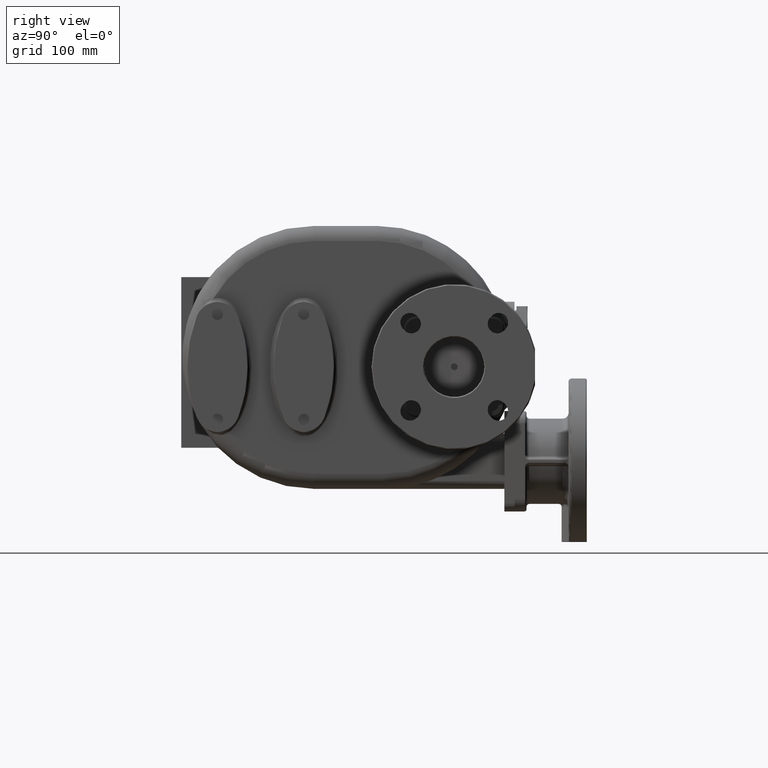
[diagram: clean part render]
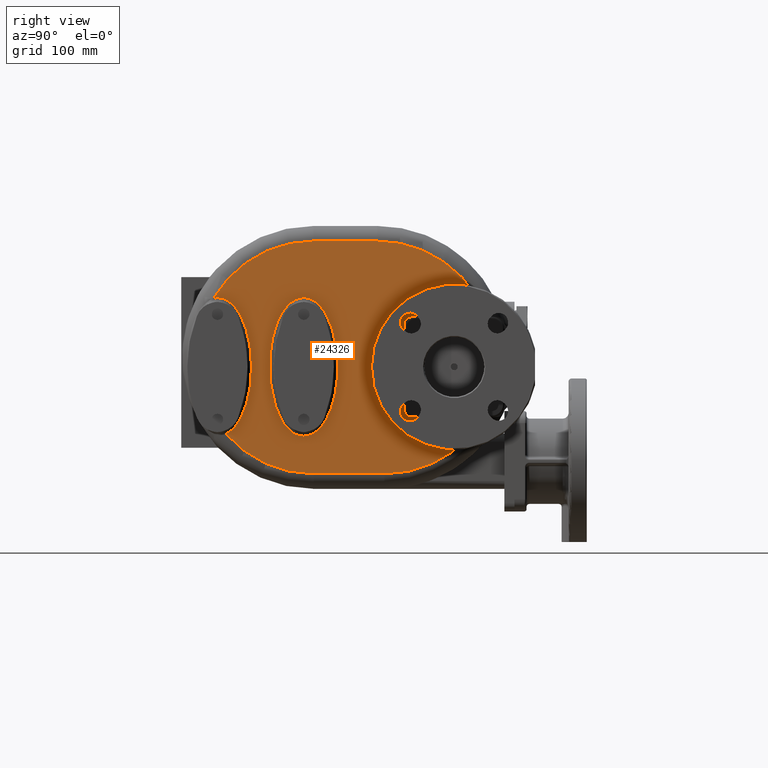
[diagram: same view with one face highlighted and labeled with its STEP entity id]
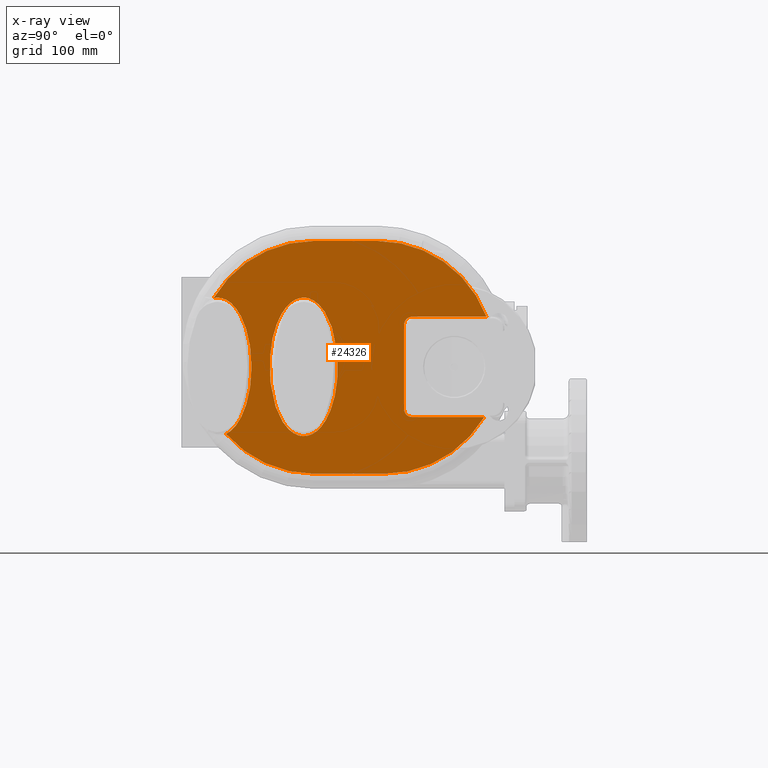
[diagram: x-ray of the same camera — body ghosted, the highlighted face saturated]
A machine part, right view. The second image highlights one B-rep face of the part: STEP entity #24326.
The next image is the same camera in x-ray: the body ghosted, the highlighted face saturated — about 0% of this face is hidden behind the body in this view.
In plain terms, the highlighted planar face has unit normal (-1, 0, 0).
Its self-contained STEP definition (entity closure, byte-faithful):
#6029=CARTESIAN_POINT('',(9.100000769140E1,3.600000000005E1,5.949999999997E1));
#6030=CARTESIAN_POINT('',(9.100000967008E1,3.581966164502E1,5.949999653014E1));
#6031=CARTESIAN_POINT('',(9.099999554707E1,3.545820326080E1,5.949451643429E1));
#6032=CARTESIAN_POINT('',(9.100000108015E1,3.491333252313E1,5.946969862291E1));
#6033=CARTESIAN_POINT('',(9.100000013233E1,3.436679300740E1,5.942800869430E1));
#6034=CARTESIAN_POINT('',(9.099999839053E1,3.381920225739E1,5.936937491779E1));
#6035=CARTESIAN_POINT('',(9.100000630556E1,3.327129884937E1,5.929376160975E1));
#6036=CARTESIAN_POINT('',(9.099997638722E1,3.272373459291E1,5.920111112034E1));
#6037=CARTESIAN_POINT('',(9.100005089278E1,3.235953007896E1,5.912812855650E1));
#6038=CARTESIAN_POINT('',(9.100004992876E1,3.217760166446E1,5.908881446780E1));
#6040=CARTESIAN_POINT('',(9.1E1,1.32E2,0.E0));
#6041=DIRECTION('',(1.E0,0.E0,0.E0));
#6042=DIRECTION('',(0.E0,0.E0,1.E0));
#6043=AXIS2_PLACEMENT_3D('',#6040,#6041,#6042);
#6045=DIRECTION('',(0.E0,-1.E0,0.E0));
#6046=VECTOR('',#6045,6.337137782137E1);
#6047=CARTESIAN_POINT('',(9.1E1,1.953713778214E2,1.16E2));
#6048=LINE('',#6047,#6046);
#6049=CARTESIAN_POINT('',(9.1E1,1.953713778214E2,0.E0));
#6050=DIRECTION('',(1.E0,0.E0,0.E0));
#6051=DIRECTION('',(0.E0,9.370713447294E-1,3.491379310345E-1));
#6052=AXIS2_PLACEMENT_3D('',#6049,#6050,#6051);
#6054=CARTESIAN_POINT('',(9.1E1,2.023006266804E2,0.E0));
#6055=DIRECTION('',(1.E0,0.E0,0.E0));
#6056=DIRECTION('',(0.E0,0.E0,-1.E0));
#6057=AXIS2_PLACEMENT_3D('',#6054,#6055,#6056);
#6059=DIRECTION('',(0.E0,1.E0,0.E0));
#6060=VECTOR('',#6059,7.030062668036E1);
#6061=CARTESIAN_POINT('',(9.1E1,1.32E2,-1.16E2));
#6062=LINE('',#6061,#6060);
#6063=CARTESIAN_POINT('',(9.1E1,1.32E2,0.E0));
#6064=DIRECTION('',(1.E0,0.E0,0.E0));
#6065=DIRECTION('',(0.E0,-7.528766622300E-1,-6.581616302015E-1));
#6066=AXIS2_PLACEMENT_3D('',#6063,#6064,#6065);
#6068=CARTESIAN_POINT('',(9.099992128087E1,4.466630732680E1,-7.634674873565E1));
#6069=CARTESIAN_POINT('',(9.099990623291E1,4.488428892146E1,-7.623591954856E1));
#6070=CARTESIAN_POINT('',(9.100004351746E1,4.532211420032E1,-7.600425811067E1));
#6071=CARTESIAN_POINT('',(9.099998833953E1,4.598342295932E1,-7.562565516244E1));
#6072=CARTESIAN_POINT('',(9.100000312441E1,4.664994968869E1,-7.521456790700E1));
#6073=CARTESIAN_POINT('',(9.099999916282E1,4.732165363997E1,-7.476955411012E1));
#6074=CARTESIAN_POINT('',(9.100000022432E1,4.799842598802E1,-7.428918038869E1));
#6075=CARTESIAN_POINT('',(9.099999993989E1,4.868017087183E1,-7.377183848311E1));
#6076=CARTESIAN_POINT('',(9.100000001611E1,4.936749061023E1,-7.321527536123E1));
#6077=CARTESIAN_POINT('',(9.099999999568E1,5.006074719168E1,-7.261721462709E1));
#6078=CARTESIAN_POINT('',(9.100000000116E1,5.076004457628E1,-7.197547896219E1));
#6079=CARTESIAN_POINT('',(9.099999999969E1,5.146535889293E1,-7.128758283862E1));
#6080=CARTESIAN_POINT('',(9.100000000008E1,5.217679117302E1,-7.055072400298E1));
#6081=CARTESIAN_POINT('',(9.099999999998E1,5.289419816287E1,-6.976231433797E1));
#6082=CARTESIAN_POINT('',(9.100000000001E1,5.361727563751E1,-6.891945931446E1));
#6083=CARTESIAN_POINT('',(9.1E1,5.434585055344E1,-6.801883341086E1));
#6084=CARTESIAN_POINT('',(9.1E1,5.507951227066E1,-6.705743494183E1));
#6085=CARTESIAN_POINT('',(9.1E1,5.581762664493E1,-6.603177854466E1));
#6086=CARTESIAN_POINT('',(9.1E1,5.655956620236E1,-6.493838483149E1));
#6087=CARTESIAN_POINT('',(9.1E1,5.730440817789E1,-6.377384710976E1));
#6088=CARTESIAN_POINT('',(9.1E1,5.805102957950E1,-6.253448013082E1));
#6089=CARTESIAN_POINT('',(9.1E1,5.879820037497E1,-6.121688728581E1));
#6090=CARTESIAN_POINT('',(9.1E1,5.954430083567E1,-5.981749851625E1));
#6091=CARTESIAN_POINT('',(9.1E1,6.028766511601E1,-5.833302629866E1));
#6092=CARTESIAN_POINT('',(9.1E1,6.102618843146E1,-5.676028446961E1));
#6093=CARTESIAN_POINT('',(9.1E1,6.175765728232E1,-5.509639720881E1));
#6094=CARTESIAN_POINT('',(9.1E1,6.247951640779E1,-5.333880452463E1));
#6095=CARTESIAN_POINT('',(9.1E1,6.318896968749E1,-5.148536832232E1));
#6096=CARTESIAN_POINT('',(9.1E1,6.388304523965E1,-4.953442918438E1));
#6097=CARTESIAN_POINT('',(9.1E1,6.455840844292E1,-4.748501263447E1));
#6098=CARTESIAN_POINT('',(9.1E1,6.521163110257E1,-4.533679761953E1));
#6099=CARTESIAN_POINT('',(9.1E1,6.583902689590E1,-4.309035688096E1));
#6100=CARTESIAN_POINT('',(9.1E1,6.643676484727E1,-4.074716158862E1));
#6101=CARTESIAN_POINT('',(9.1E1,6.700098846359E1,-3.830958713732E1));
#6102=CARTESIAN_POINT('',(9.1E1,6.752775775335E1,-3.578110664967E1));
#6103=CARTESIAN_POINT('',(9.1E1,6.801314165868E1,-3.316633740869E1));
#6104=CARTESIAN_POINT('',(9.1E1,6.845341391894E1,-3.047086257878E1));
#6105=CARTESIAN_POINT('',(9.1E1,6.884488343396E1,-2.770162354879E1));
#6106=CARTESIAN_POINT('',(9.1E1,6.918425221210E1,-2.486641120822E1));
#6107=CARTESIAN_POINT('',(9.1E1,6.946848199109E1,-2.197416819243E1));
#6108=CARTESIAN_POINT('',(9.1E1,6.969496152501E1,-1.903470759520E1));
#6109=CARTESIAN_POINT('',(9.1E1,6.986159472386E1,-1.605864099120E1));
#6110=CARTESIAN_POINT('',(9.1E1,6.996675811104E1,-1.305715451046E1));
#6111=CARTESIAN_POINT('',(9.1E1,7.000947420078E1,-1.004187131840E1));
#6112=CARTESIAN_POINT('',(9.1E1,6.998932175360E1,-7.024540483296E0));
#6113=CARTESIAN_POINT('',(9.1E1,6.990649338142E1,-4.017124150174E0));
#6114=CARTESIAN_POINT('',(9.1E1,6.976184048859E1,-1.031209244925E0));
#6115=CARTESIAN_POINT('',(9.1E1,6.955669463666E1,1.921828307473E0));
#6116=CARTESIAN_POINT('',(9.1E1,6.929307982827E1,4.831241793811E0));
#6117=CARTESIAN_POINT('',(9.1E1,6.897335027053E1,7.686975839886E0));
#6118=CARTESIAN_POINT('',(9.1E1,6.860046125114E1,1.047982563726E1));
#6119=CARTESIAN_POINT('',(9.1E1,6.817757909930E1,1.320161167719E1));
#6120=CARTESIAN_POINT('',(9.1E1,6.770825402815E1,1.584521878216E1));
#6121=CARTESIAN_POINT('',(9.1E1,6.719621610012E1,1.840451724933E1));
#6122=CARTESIAN_POINT('',(9.1E1,6.664528484831E1,2.087463231715E1));
#6123=CARTESIAN_POINT('',(9.1E1,6.605944226801E1,2.325159052093E1));
#6124=CARTESIAN_POINT('',(9.1E1,6.544255783718E1,2.553263215422E1));
#6125=CARTESIAN_POINT('',(9.1E1,6.479848045075E1,2.771593615844E1));
#6126=CARTESIAN_POINT('',(9.1E1,6.413098863607E1,2.980055395630E1));
#6127=CARTESIAN_POINT('',(9.1E1,6.344359425549E1,3.178647552272E1));
#6128=CARTESIAN_POINT('',(9.1E1,6.273967258939E1,3.367447942084E1));
#6129=CARTESIAN_POINT('',(9.1E1,6.202233096757E1,3.546599550191E1));
#6130=CARTESIAN_POINT('',(9.1E1,6.129438622664E1,3.716304595302E1));
#6131=CARTESIAN_POINT('',(9.1E1,6.055852464740E1,3.876804257682E1));
#6132=CARTESIAN_POINT('',(9.1E1,5.981701338161E1,4.028376172088E1));
#6133=CARTESIAN_POINT('',(9.1E1,5.907206449995E1,4.171329918279E1));
#6134=CARTESIAN_POINT('',(9.1E1,5.832541240763E1,4.305989420712E1));
#6135=CARTESIAN_POINT('',(9.1E1,5.757878569088E1,4.432704230581E1));
#6136=CARTESIAN_POINT('',(9.1E1,5.683348241151E1,4.551810553065E1));
#6137=CARTESIAN_POINT('',(9.1E1,5.609077440177E1,4.663673794789E1));
#6138=CARTESIAN_POINT('',(9.1E1,5.535157801988E1,4.768634309590E1));
#6139=CARTESIAN_POINT('',(9.1E1,5.461660662872E1,4.867053831125E1));
#6140=CARTESIAN_POINT('',(9.1E1,5.388655588242E1,4.959274032755E1));
#6141=CARTESIAN_POINT('',(9.1E1,5.316175304245E1,5.045615750690E1));
#6142=CARTESIAN_POINT('',(9.1E1,5.244246123235E1,5.126417995939E1));
#6143=CARTESIAN_POINT('',(9.1E1,5.172902638192E1,5.201961796663E1));
#6144=CARTESIAN_POINT('',(9.1E1,5.102145292432E1,5.272533239298E1));
#6145=CARTESIAN_POINT('',(9.1E1,5.031979879214E1,5.338408651439E1));
#6146=CARTESIAN_POINT('',(9.1E1,4.962412490234E1,5.399822802261E1));
#6147=CARTESIAN_POINT('',(9.1E1,4.893420364726E1,5.457021645381E1));
#6148=CARTESIAN_POINT('',(9.1E1,4.825001030420E1,5.510217292734E1));
#6149=CARTESIAN_POINT('',(9.1E1,4.757137932392E1,5.559607878208E1));
#6150=CARTESIAN_POINT('',(9.1E1,4.689802368800E1,5.605386878028E1));
#6151=CARTESIAN_POINT('',(9.1E1,4.622982686230E1,5.647720040911E1));
#6152=CARTESIAN_POINT('',(9.1E1,4.556642984479E1,5.686771584928E1));
#6153=CARTESIAN_POINT('',(9.1E1,4.490761417957E1,5.722682427135E1));
#6154=CARTESIAN_POINT('',(9.1E1,4.425315742979E1,5.755584819394E1));
#6155=CARTESIAN_POINT('',(9.1E1,4.360267646915E1,5.785600579984E1));
#6156=CARTESIAN_POINT('',(9.099999999999E1,4.295583374795E1,5.812843082222E1));
#6157=CARTESIAN_POINT('',(9.100000000003E1,4.231215080959E1,5.837414397422E1));
#6158=CARTESIAN_POINT('',(9.099999999988E1,4.167154153744E1,5.859389792340E1));
#6159=CARTESIAN_POINT('',(9.100000000046E1,4.103396898141E1,5.878845408130E1));
#6160=CARTESIAN_POINT('',(9.099999999827E1,4.039901562096E1,5.895849048363E1));
#6161=CARTESIAN_POINT('',(9.100000000647E1,3.976598470378E1,5.910472315376E1));
#6162=CARTESIAN_POINT('',(9.099999997585E1,3.913401633474E1,5.922778089033E1));
#6163=CARTESIAN_POINT('',(9.100000009012E1,3.850309292868E1,5.932786628178E1));
#6164=CARTESIAN_POINT('',(9.099999966367E1,3.787377088121E1,5.940521712461E1));
#6165=CARTESIAN_POINT('',(9.100000125522E1,3.724646853708E1,5.946013249716E1));
#6166=CARTESIAN_POINT('',(9.099999531546E1,3.662153118643E1,5.949278338985E1));
#6167=CARTESIAN_POINT('',(9.100001009379E1,3.620687115340E1,5.949999584220E1));
#6168=CARTESIAN_POINT('',(9.100000769140E1,3.600000000005E1,5.949999999997E1));
#6170=CARTESIAN_POINT('',(9.100002976873E1,1.219999999825E2,-7.849999999934E1));
#6171=CARTESIAN_POINT('',(9.100006599222E1,1.222089889872E2,-7.849992761562E1));
#6172=CARTESIAN_POINT('',(9.099996937291E1,1.226269893767E2,-7.849219890357E1));
#6173=CARTESIAN_POINT('',(9.100000820650E1,1.232539462229E2,-7.845893867935E1));
#6174=CARTESIAN_POINT('',(9.099999780107E1,1.238811931141E2,-7.840367739163E1));
#6175=CARTESIAN_POINT('',(9.100000058920E1,1.245089220575E2,-7.832642105446E1));
#6176=CARTESIAN_POINT('',(9.099999984212E1,1.251373113750E2,-7.822688290528E1));
#6177=CARTESIAN_POINT('',(9.100000004230E1,1.257665035796E2,-7.810465088703E1));
#6178=CARTESIAN_POINT('',(9.099999998867E1,1.263964641631E2,-7.795914833509E1));
#6179=CARTESIAN_POINT('',(9.100000000304E1,1.270278109559E2,-7.779008056208E1));
#6180=CARTESIAN_POINT('',(9.099999999919E1,1.276617583855E2,-7.759680121310E1));
#6181=CARTESIAN_POINT('',(9.100000000022E1,1.282993002829E2,-7.737846503212E1));
#6182=CARTESIAN_POINT('',(9.099999999994E1,1.289411465157E2,-7.713407249661E1));
#6183=CARTESIAN_POINT('',(9.100000000002E1,1.295866558382E2,-7.686299434873E1));
#6184=CARTESIAN_POINT('',(9.1E1,1.302351134745E2,-7.656455821451E1));
#6185=CARTESIAN_POINT('',(9.1E1,1.308859880422E2,-7.623815209005E1));
#6186=CARTESIAN_POINT('',(9.1E1,1.315408311377E2,-7.588217024686E1));
#6187=CARTESIAN_POINT('',(9.1E1,1.322009591928E2,-7.549474793897E1));
#6188=CARTESIAN_POINT('',(9.1E1,1.328669354104E2,-7.507418688482E1));
#6189=CARTESIAN_POINT('',(9.1E1,1.335381952809E2,-7.461935548003E1));
#6190=CARTESIAN_POINT('',(9.1E1,1.342141469229E2,-7.412911822654E1));
#6191=CARTESIAN_POINT('',(9.1E1,1.348953844826E2,-7.360135916157E1));
#6192=CARTESIAN_POINT('',(9.1E1,1.355824369952E2,-7.303380020100E1));
#6193=CARTESIAN_POINT('',(9.1E1,1.362755582272E2,-7.242422009113E1));
#6194=CARTESIAN_POINT('',(9.1E1,1.369747604409E2,-7.177042576833E1));
#6195=CARTESIAN_POINT('',(9.1E1,1.376801527912E2,-7.106970218984E1));
#6196=CARTESIAN_POINT('',(9.1E1,1.383916778025E2,-7.031938981153E1));
#6197=CARTESIAN_POINT('',(9.1E1,1.391090617436E2,-6.951698498771E1));
#6198=CARTESIAN_POINT('',(9.1E1,1.398321272567E2,-6.865929352639E1));
#6199=CARTESIAN_POINT('',(9.1E1,1.405605591095E2,-6.774321824092E1));
#6200=CARTESIAN_POINT('',(9.1E1,1.412938451072E2,-6.676575263717E1));
#6201=CARTESIAN_POINT('',(9.1E1,1.420313886340E2,-6.572326679996E1));
#6202=CARTESIAN_POINT('',(9.1E1,1.427724797047E2,-6.461249692826E1));
#6203=CARTESIAN_POINT('',(9.1E1,1.435161018842E2,-6.342990575365E1));
#6204=CARTESIAN_POINT('',(9.1E1,1.442611115221E2,-6.217203069811E1));
#6205=CARTESIAN_POINT('',(9.1E1,1.450061424772E2,-6.083547492816E1));
#6206=CARTESIAN_POINT('',(9.1E1,1.457496309239E2,-5.941673749575E1));
#6207=CARTESIAN_POINT('',(9.1E1,1.464897761605E2,-5.791259942696E1));
#6208=CARTESIAN_POINT('',(9.1E1,1.472245099165E2,-5.631998559319E1));
#6209=CARTESIAN_POINT('',(9.1E1,1.479514852984E2,-5.463614500053E1));
#6210=CARTESIAN_POINT('',(9.1E1,1.486681985137E2,-5.285861348603E1));
#6211=CARTESIAN_POINT('',(9.1E1,1.493717453165E2,-5.098545029339E1));
#6212=CARTESIAN_POINT('',(9.1E1,1.500591272500E2,-4.901521776638E1));
#6213=CARTESIAN_POINT('',(9.1E1,1.507270044215E2,-4.694714472128E1));
#6214=CARTESIAN_POINT('',(9.1E1,1.513718772856E2,-4.478121629553E1));
#6215=CARTESIAN_POINT('',(9.1E1,1.519901255730E2,-4.251815853557E1));
#6216=CARTESIAN_POINT('',(9.1E1,1.525779294036E2,-4.015966414029E1));
#6217=CARTESIAN_POINT('',(9.1E1,1.531314320420E2,-3.770841489725E1));
#6218=CARTESIAN_POINT('',(9.1E1,1.536467955655E2,-3.516804805815E1));
#6219=CARTESIAN_POINT('',(9.1E1,1.541201326125E2,-3.254343664375E1));
#6220=CARTESIAN_POINT('',(9.1E1,1.545477806740E2,-2.984044849649E1));
#6221=CARTESIAN_POINT('',(9.1E1,1.549262242805E2,-2.706600151479E1));
#6222=CARTESIAN_POINT('',(9.1E1,1.552521938771E2,-2.422823910650E1));
#6223=CARTESIAN_POINT('',(9.1E1,1.555228774542E2,-2.133595119623E1));
#6224=CARTESIAN_POINT('',(9.1E1,1.557357059216E2,-1.839922929746E1));
#6225=CARTESIAN_POINT('',(9.1E1,1.558888141503E2,-1.542846276781E1));
#6226=CARTESIAN_POINT('',(9.1E1,1.559806302462E2,-1.243495452128E1));
#6227=CARTESIAN_POINT('',(9.1E1,1.560104009219E2,-9.430092195098E0));
#6228=CARTESIAN_POINT('',(9.1E1,1.559777387126E2,-6.425596396738E0));
#6229=CARTESIAN_POINT('',(9.1E1,1.558830504749E2,-3.433241382388E0));
#6230=CARTESIAN_POINT('',(9.1E1,1.557271910816E2,-4.643411524384E-1));
#6231=CARTESIAN_POINT('',(9.1E1,1.555116830744E2,2.469798478656E0));
#6232=CARTESIAN_POINT('',(9.1E1,1.552385173369E2,5.358899181902E0));
#6233=CARTESIAN_POINT('',(9.1E1,1.549102078524E2,8.192904181552E0));
#6234=CARTESIAN_POINT('',(9.1E1,1.545296352843E2,1.096316995740E1));
#6235=CARTESIAN_POINT('',(9.1E1,1.541000834012E2,1.366153668306E1));
#6236=CARTESIAN_POINT('',(9.1E1,1.536250078150E2,1.628135695962E1));
#6237=CARTESIAN_POINT('',(9.1E1,1.531081876936E2,1.881663288060E1));
#6238=CARTESIAN_POINT('',(9.1E1,1.525533816234E2,2.126273401997E1));
#6239=CARTESIAN_POINT('',(9.1E1,1.519645244300E2,2.361592903350E1));
#6240=CARTESIAN_POINT('',(9.1E1,1.513454691941E2,2.587356122194E1));
#6241=CARTESIAN_POINT('',(9.1E1,1.506999922077E2,2.803397406506E1));
#6242=CARTESIAN_POINT('',(9.1E1,1.500318079849E2,3.009637898248E1));
#6243=CARTESIAN_POINT('',(9.1E1,1.493443977244E2,3.206082447235E1));
#6244=CARTESIAN_POINT('',(9.1E1,1.486410108353E2,3.392825548746E1));
#6245=CARTESIAN_POINT('',(9.1E1,1.479247348710E2,3.570014891303E1));
#6246=CARTESIAN_POINT('',(9.1E1,1.471982793180E2,3.737857827911E1));
#6247=CARTESIAN_POINT('',(9.1E1,1.464642904282E2,3.896599760945E1));
#6248=CARTESIAN_POINT('',(9.1E1,1.457249688369E2,4.046516653456E1));
#6249=CARTESIAN_POINT('',(9.1E1,1.449824724881E2,4.187919166238E1));
#6250=CARTESIAN_POINT('',(9.1E1,1.442384884787E2,4.321128901928E1));
#6251=CARTESIAN_POINT('',(9.1E1,1.434947084739E2,4.446491318001E1));
#6252=CARTESIAN_POINT('',(9.1E1,1.427523806769E2,4.564340264149E1));
#6253=CARTESIAN_POINT('',(9.1E1,1.420127609012E2,4.675037499890E1));
#6254=CARTESIAN_POINT('',(9.1E1,1.412766936807E2,4.778919409955E1));
#6255=CARTESIAN_POINT('',(9.1E1,1.405448931910E2,4.876346387182E1));
#6256=CARTESIAN_POINT('',(9.1E1,1.398180189474E2,4.967650613112E1));
#6257=CARTESIAN_POINT('',(9.1E1,1.390963423265E2,5.053155154721E1));
#6258=CARTESIAN_POINT('',(9.1E1,1.383801633060E2,5.133189176119E1));
#6259=CARTESIAN_POINT('',(9.1E1,1.376697937818E2,5.208028016145E1));
#6260=CARTESIAN_POINT('',(9.1E1,1.369652088936E2,5.277957530295E1));
#6261=CARTESIAN_POINT('',(9.1E1,1.362665077669E2,5.343244348983E1));
#6262=CARTESIAN_POINT('',(9.1E1,1.355737118753E2,5.404121509670E1));
#6263=CARTESIAN_POINT('',(9.1E1,1.348866038930E2,5.460830917763E1));
#6264=CARTESIAN_POINT('',(9.1E1,1.342051806344E2,5.513578639092E1));
#6265=CARTESIAN_POINT('',(9.1E1,1.335292438858E2,5.562562163559E1));
#6266=CARTESIAN_POINT('',(9.1E1,1.328585380667E2,5.607969837878E1));
#6267=CARTESIAN_POINT('',(9.1E1,1.321929369038E2,5.649965459688E1));
#6268=CARTESIAN_POINT('',(9.1E1,1.315320791443E2,5.688710797113E1));
#6269=CARTESIAN_POINT('',(9.1E1,1.308757704681E2,5.724343617396E1));
#6270=CARTESIAN_POINT('',(9.1E1,1.302237711500E2,5.756995137400E1));
#6271=CARTESIAN_POINT('',(9.100000000001E1,1.295757062066E2,5.786785013233E1));
#6272=CARTESIAN_POINT('',(9.099999999997E1,1.289312297107E2,5.813825714870E1));
#6273=CARTESIAN_POINT('',(9.100000000011E1,1.282898817448E2,5.838216685490E1));
#6274=CARTESIAN_POINT('',(9.099999999960E1,1.276515933297E2,5.860032073477E1));
#6275=CARTESIAN_POINT('',(9.100000000148E1,1.270163222831E2,5.879347135739E1));
#6276=CARTESIAN_POINT('',(9.099999999448E1,1.263836252053E2,5.896229323823E1));
#6277=CARTESIAN_POINT('',(9.100000002062E1,1.257528123243E2,5.910749510339E1));
#6278=CARTESIAN_POINT('',(9.099999992306E1,1.251230282071E2,5.922969240762E1));
#6279=CARTESIAN_POINT('',(9.100000028716E1,1.244943052675E2,5.932907442089E1));
#6280=CARTESIAN_POINT('',(9.099999892831E1,1.238671859480E2,5.940588288552E1));
#6281=CARTESIAN_POINT('',(9.100000399961E1,1.232420858428E2,5.946041253910E1));
#6282=CARTESIAN_POINT('',(9.099998507325E1,1.226193459158E2,5.949283374531E1));
#6283=CARTESIAN_POINT('',(9.100003216267E1,1.222061437215E2,5.949999585588E1));
#6284=CARTESIAN_POINT('',(9.100002976873E1,1.220000000175E2,5.949999999934E1));
#6286=CARTESIAN_POINT('',(9.100002976873E1,1.220000000175E2,5.949999999934E1));
#6287=CARTESIAN_POINT('',(9.100006599222E1,1.217910110128E2,5.949992761562E1));
#6288=CARTESIAN_POINT('',(9.099996937291E1,1.213730106233E2,5.949219890357E1));
#6289=CARTESIAN_POINT('',(9.100000820650E1,1.207460537771E2,5.945893867935E1));
#6290=CARTESIAN_POINT('',(9.099999780107E1,1.201188068859E2,5.940367739163E1));
#6291=CARTESIAN_POINT('',(9.100000058920E1,1.194910779425E2,5.932642105446E1));
#6292=CARTESIAN_POINT('',(9.099999984212E1,1.188626886250E2,5.922688290528E1));
#6293=CARTESIAN_POINT('',(9.100000004230E1,1.182334964204E2,5.910465088703E1));
#6294=CARTESIAN_POINT('',(9.099999998867E1,1.176035358369E2,5.895914833509E1));
#6295=CARTESIAN_POINT('',(9.100000000304E1,1.169721890441E2,5.879008056208E1));
#6296=CARTESIAN_POINT('',(9.099999999919E1,1.163382416145E2,5.859680121310E1));
#6297=CARTESIAN_POINT('',(9.100000000022E1,1.157006997171E2,5.837846503212E1));
#6298=CARTESIAN_POINT('',(9.099999999994E1,1.150588534843E2,5.813407249661E1));
#6299=CARTESIAN_POINT('',(9.100000000002E1,1.144133441618E2,5.786299434873E1));
#6300=CARTESIAN_POINT('',(9.1E1,1.137648865255E2,5.756455821451E1));
#6301=CARTESIAN_POINT('',(9.1E1,1.131140119578E2,5.723815209005E1));
#6302=CARTESIAN_POINT('',(9.1E1,1.124591688623E2,5.688217024686E1));
#6303=CARTESIAN_POINT('',(9.1E1,1.117990408072E2,5.649474793897E1));
#6304=CARTESIAN_POINT('',(9.1E1,1.111330645896E2,5.607418688482E1));
#6305=CARTESIAN_POINT('',(9.1E1,1.104618047191E2,5.561935548003E1));
#6306=CARTESIAN_POINT('',(9.1E1,1.097858530771E2,5.512911822654E1));
#6307=CARTESIAN_POINT('',(9.1E1,1.091046155174E2,5.460135916157E1));
#6308=CARTESIAN_POINT('',(9.1E1,1.084175630048E2,5.403380020100E1));
#6309=CARTESIAN_POINT('',(9.1E1,1.077244417728E2,5.342422009113E1));
#6310=CARTESIAN_POINT('',(9.1E1,1.070252395591E2,5.277042576833E1));
#6311=CARTESIAN_POINT('',(9.1E1,1.063198472088E2,5.206970218984E1));
#6312=CARTESIAN_POINT('',(9.1E1,1.056083221975E2,5.131938981153E1));
#6313=CARTESIAN_POINT('',(9.1E1,1.048909382564E2,5.051698498771E1));
#6314=CARTESIAN_POINT('',(9.1E1,1.041678727433E2,4.965929352639E1));
#6315=CARTESIAN_POINT('',(9.1E1,1.034394408905E2,4.874321824092E1));
#6316=CARTESIAN_POINT('',(9.1E1,1.027061548928E2,4.776575263717E1));
#6317=CARTESIAN_POINT('',(9.1E1,1.019686113660E2,4.672326679996E1));
#6318=CARTESIAN_POINT('',(9.1E1,1.012275202953E2,4.561249692826E1));
#6319=CARTESIAN_POINT('',(9.1E1,1.004838981158E2,4.442990575365E1));
#6320=CARTESIAN_POINT('',(9.1E1,9.973888847789E1,4.317203069811E1));
#6321=CARTESIAN_POINT('',(9.1E1,9.899385752279E1,4.183547492816E1));
#6322=CARTESIAN_POINT('',(9.1E1,9.825036907609E1,4.041673749575E1));
#6323=CARTESIAN_POINT('',(9.1E1,9.751022383951E1,3.891259942696E1));
#6324=CARTESIAN_POINT('',(9.1E1,9.677549008355E1,3.731998559319E1));
#6325=CARTESIAN_POINT('',(9.1E1,9.604851470158E1,3.563614500053E1));
#6326=CARTESIAN_POINT('',(9.1E1,9.533180148631E1,3.385861348603E1));
#6327=CARTESIAN_POINT('',(9.1E1,9.462825468353E1,3.198545029339E1));
#6328=CARTESIAN_POINT('',(9.1E1,9.394087274997E1,3.001521776638E1));
#6329=CARTESIAN_POINT('',(9.1E1,9.327299557854E1,2.794714472128E1));
#6330=CARTESIAN_POINT('',(9.1E1,9.262812271437E1,2.578121629553E1));
#6331=CARTESIAN_POINT('',(9.1E1,9.200987442698E1,2.351815853556E1));
#6332=CARTESIAN_POINT('',(9.1E1,9.142207059637E1,2.115966414028E1));
#6333=CARTESIAN_POINT('',(9.1E1,9.086856795796E1,1.870841489725E1));
#6334=CARTESIAN_POINT('',(9.1E1,9.035320443452E1,1.616804805815E1));
#6335=CARTESIAN_POINT('',(9.1E1,8.987986738745E1,1.354343664375E1));
#6336=CARTESIAN_POINT('',(9.1E1,8.945221932598E1,1.084044849649E1));
#6337=CARTESIAN_POINT('',(9.1E1,8.907377571945E1,8.066001514784E0));
#6338=CARTESIAN_POINT('',(9.1E1,8.874780612293E1,5.228239106495E0));
#6339=CARTESIAN_POINT('',(9.1E1,8.847712254582E1,2.335951196231E0));
#6340=CARTESIAN_POINT('',(9.1E1,8.826429407843E1,-6.007707025456E-1));
#6341=CARTESIAN_POINT('',(9.1E1,8.811118584973E1,-3.571537232194E0));
#6342=CARTESIAN_POINT('',(9.1E1,8.801936975379E1,-6.565045478723E0));
#6343=CARTESIAN_POINT('',(9.1E1,8.798959907807E1,-9.569907804900E0));
#6344=CARTESIAN_POINT('',(9.1E1,8.802226128735E1,-1.257440360326E1));
#6345=CARTESIAN_POINT('',(9.1E1,8.811694952509E1,-1.556675861761E1));
#6346=CARTESIAN_POINT('',(9.1E1,8.827280891841E1,-1.853565884756E1));
#6347=CARTESIAN_POINT('',(9.1E1,8.848831692557E1,-2.146979847865E1));
#6348=CARTESIAN_POINT('',(9.1E1,8.876148266313E1,-2.435889918190E1));
#6349=CARTESIAN_POINT('',(9.1E1,8.908979214757E1,-2.719290418155E1));
#6350=CARTESIAN_POINT('',(9.1E1,8.947036471567E1,-2.996316995740E1));
#6351=CARTESIAN_POINT('',(9.1E1,8.989991659875E1,-3.266153668306E1));
#6352=CARTESIAN_POINT('',(9.1E1,9.037499218503E1,-3.528135695962E1));
#6353=CARTESIAN_POINT('',(9.1E1,9.089181230641E1,-3.781663288060E1));
#6354=CARTESIAN_POINT('',(9.1E1,9.144661837664E1,-4.026273401997E1));
#6355=CARTESIAN_POINT('',(9.1E1,9.203547557004E1,-4.261592903350E1));
#6356=CARTESIAN_POINT('',(9.1E1,9.265453080592E1,-4.487356122193E1));
#6357=CARTESIAN_POINT('',(9.1E1,9.330000779233E1,-4.703397406506E1));
#6358=CARTESIAN_POINT('',(9.1E1,9.396819201511E1,-4.909637898248E1));
#6359=CARTESIAN_POINT('',(9.1E1,9.465560227560E1,-5.106082447234E1));
#6360=CARTESIAN_POINT('',(9.1E1,9.535898916472E1,-5.292825548745E1));
#6361=CARTESIAN_POINT('',(9.1E1,9.607526512901E1,-5.470014891302E1));
#6362=CARTESIAN_POINT('',(9.1E1,9.680172068200E1,-5.637857827911E1));
#6363=CARTESIAN_POINT('',(9.1E1,9.753570957181E1,-5.796599760945E1));
#6364=CARTESIAN_POINT('',(9.1E1,9.827503116306E1,-5.946516653456E1));
#6365=CARTESIAN_POINT('',(9.1E1,9.901752751193E1,-6.087919166238E1));
#6366=CARTESIAN_POINT('',(9.1E1,9.976151152132E1,-6.221128901928E1));
#6367=CARTESIAN_POINT('',(9.1E1,1.005052915261E2,-6.346491318001E1));
#6368=CARTESIAN_POINT('',(9.1E1,1.012476193231E2,-6.464340264149E1));
#6369=CARTESIAN_POINT('',(9.1E1,1.019872390988E2,-6.575037499890E1));
#6370=CARTESIAN_POINT('',(9.1E1,1.027233063193E2,-6.678919409955E1));
#6371=CARTESIAN_POINT('',(9.1E1,1.034551068090E2,-6.776346387182E1));
#6372=CARTESIAN_POINT('',(9.1E1,1.041819810526E2,-6.867650613112E1));
#6373=CARTESIAN_POINT('',(9.1E1,1.049036576735E2,-6.953155154721E1));
#6374=CARTESIAN_POINT('',(9.1E1,1.056198366940E2,-7.033189176119E1));
#6375=CARTESIAN_POINT('',(9.1E1,1.063302062182E2,-7.108028016145E1));
#6376=CARTESIAN_POINT('',(9.1E1,1.070347911064E2,-7.177957530295E1));
#6377=CARTESIAN_POINT('',(9.1E1,1.077334922331E2,-7.243244348983E1));
#6378=CARTESIAN_POINT('',(9.1E1,1.084262881247E2,-7.304121509670E1));
#6379=CARTESIAN_POINT('',(9.1E1,1.091133961070E2,-7.360830917763E1));
#6380=CARTESIAN_POINT('',(9.1E1,1.097948193656E2,-7.413578639092E1));
#6381=CARTESIAN_POINT('',(9.1E1,1.104707561142E2,-7.462562163559E1));
#6382=CARTESIAN_POINT('',(9.1E1,1.111414619333E2,-7.507969837878E1));
#6383=CARTESIAN_POINT('',(9.1E1,1.118070630962E2,-7.549965459688E1));
#6384=CARTESIAN_POINT('',(9.1E1,1.124679208557E2,-7.588710797113E1));
#6385=CARTESIAN_POINT('',(9.1E1,1.131242295319E2,-7.624343617396E1));
#6386=CARTESIAN_POINT('',(9.1E1,1.137762288500E2,-7.656995137400E1));
#6387=CARTESIAN_POINT('',(9.100000000001E1,1.144242937934E2,-7.686785013233E1));
#6388=CARTESIAN_POINT('',(9.099999999997E1,1.150687702893E2,-7.713825714870E1));
#6389=CARTESIAN_POINT('',(9.100000000011E1,1.157101182552E2,-7.738216685490E1));
#6390=CARTESIAN_POINT('',(9.099999999960E1,1.163484066703E2,-7.760032073477E1));
#6391=CARTESIAN_POINT('',(9.100000000148E1,1.169836777169E2,-7.779347135739E1));
#6392=CARTESIAN_POINT('',(9.099999999448E1,1.176163747947E2,-7.796229323823E1));
#6393=CARTESIAN_POINT('',(9.100000002062E1,1.182471876757E2,-7.810749510339E1));
#6394=CARTESIAN_POINT('',(9.099999992306E1,1.188769717929E2,-7.822969240762E1));
#6395=CARTESIAN_POINT('',(9.100000028716E1,1.195056947325E2,-7.832907442089E1));
#6396=CARTESIAN_POINT('',(9.099999892831E1,1.201328140520E2,-7.840588288552E1));
#6397=CARTESIAN_POINT('',(9.100000399961E1,1.207579141572E2,-7.846041253910E1));
#6398=CARTESIAN_POINT('',(9.099998507325E1,1.213806540842E2,-7.849283374531E1));
#6399=CARTESIAN_POINT('',(9.100003216267E1,1.217938562785E2,-7.849999585588E1));
#6400=CARTESIAN_POINT('',(9.100002976873E1,1.219999999825E2,-7.849999999934E1));
#6642=DIRECTION('',(0.E0,1.E0,0.E0));
#6643=VECTOR('',#6642,7.187848566518E1);
#6644=CARTESIAN_POINT('',(9.1E1,2.3E2,-5.95E1));
#6645=LINE('',#6644,#6643);
#6671=DIRECTION('',(0.E0,0.E0,-1.E0));
#6672=VECTOR('',#6671,8.4E1);
#6673=CARTESIAN_POINT('',(9.1E1,2.22E2,3.25E1));
#6674=LINE('',#6673,#6672);
#6726=DIRECTION('',(0.E0,-1.E0,0.E0));
#6727=VECTOR('',#6726,7.407165380998E1);
#6728=CARTESIAN_POINT('',(9.1E1,3.040716538100E2,4.05E1));
#6729=LINE('',#6728,#6727);
#10529=CARTESIAN_POINT('',(9.1E1,2.3E2,3.25E1));
#10530=DIRECTION('',(-1.E0,0.E0,0.E0));
#10531=DIRECTION('',(0.E0,-1.E0,0.E0));
#10532=AXIS2_PLACEMENT_3D('',#10529,#10530,#10531);
#10552=CARTESIAN_POINT('',(9.1E1,2.3E2,-5.15E1));
#10553=DIRECTION('',(-1.E0,0.E0,0.E0));
#10554=DIRECTION('',(0.E0,0.E0,-1.E0));
#10555=AXIS2_PLACEMENT_3D('',#10552,#10553,#10554);
#16192=CARTESIAN_POINT('',(9.1E1,2.22E2,3.25E1));
#16193=CARTESIAN_POINT('',(9.1E1,2.22E2,-5.15E1));
#16194=VERTEX_POINT('',#16192);
#16195=VERTEX_POINT('',#16193);
#16196=CARTESIAN_POINT('',(9.1E1,2.3E2,-5.95E1));
#16197=VERTEX_POINT('',#16196);
#16198=CARTESIAN_POINT('',(9.1E1,2.3E2,4.05E1));
#16199=VERTEX_POINT('',#16198);
#16204=CARTESIAN_POINT('',(9.1E1,2.023006266804E2,-1.16E2));
#16205=CARTESIAN_POINT('',(9.1E1,3.018784856652E2,-5.95E1));
#16206=VERTEX_POINT('',#16204);
#16207=VERTEX_POINT('',#16205);
#16208=CARTESIAN_POINT('',(9.1E1,1.32E2,-1.16E2));
#16209=VERTEX_POINT('',#16208);
#16214=CARTESIAN_POINT('',(9.1E1,1.953713778214E2,1.16E2));
#16215=CARTESIAN_POINT('',(9.1E1,1.32E2,1.16E2));
#16216=VERTEX_POINT('',#16214);
#16217=VERTEX_POINT('',#16215);
#16220=CARTESIAN_POINT('',(9.1E1,3.040716538100E2,4.05E1));
#16221=VERTEX_POINT('',#16220);
#16252=VERTEX_POINT('',#6170);
#16253=VERTEX_POINT('',#6284);
#16268=VERTEX_POINT('',#6029);
#16269=VERTEX_POINT('',#6038);
#16271=VERTEX_POINT('',#6068);
#24288=CARTESIAN_POINT('',(9.1E1,1.32E2,0.E0));
#24289=DIRECTION('',(-1.E0,0.E0,0.E0));
#24290=DIRECTION('',(0.E0,0.E0,1.E0));
#24291=AXIS2_PLACEMENT_3D('',#24288,#24289,#24290);
#24292=PLANE('',#24291);
#24294=ORIENTED_EDGE('',*,*,#24293,.T.);
#24296=ORIENTED_EDGE('',*,*,#24295,.F.);
#24297=ORIENTED_EDGE('',*,*,#24278,.F.);
#24299=ORIENTED_EDGE('',*,*,#24298,.F.);
#24301=ORIENTED_EDGE('',*,*,#24300,.T.);
#24303=ORIENTED_EDGE('',*,*,#24302,.F.);
#24305=ORIENTED_EDGE('',*,*,#24304,.T.);
#24307=ORIENTED_EDGE('',*,*,#24306,.F.);
#24309=ORIENTED_EDGE('',*,*,#24308,.T.);
#24311=ORIENTED_EDGE('',*,*,#24310,.F.);
#24313=ORIENTED_EDGE('',*,*,#24312,.F.);
#24315=ORIENTED_EDGE('',*,*,#24314,.F.);
#24317=ORIENTED_EDGE('',*,*,#24316,.T.);
#24318=EDGE_LOOP('',(#24294,#24296,#24297,#24299,#24301,#24303,#24305,#24307,
#24309,#24311,#24313,#24315,#24317));
#24319=FACE_OUTER_BOUND('',#24318,.F.);
#24321=ORIENTED_EDGE('',*,*,#24320,.T.);
#24323=ORIENTED_EDGE('',*,*,#24322,.T.);
#24324=EDGE_LOOP('',(#24321,#24323));
#24325=FACE_BOUND('',#24324,.F.);
#24326=ADVANCED_FACE('',(#24319,#24325),#24292,.F.);
#6039=B_SPLINE_CURVE_WITH_KNOTS('',3,(#6029,#6030,#6031,#6032,#6033,#6034,#6035,
#6036,#6037,#6038),.UNSPECIFIED.,.F.,.F.,(4,1,1,1,1,1,1,4),(0.E0,
1.428571428571E-1,2.857142857143E-1,4.285714285714E-1,5.714285714286E-1,
7.142857142857E-1,8.571428571429E-1,1.E0),.UNSPECIFIED.);
#6044=CIRCLE('',#6043,1.16E2);
#6053=CIRCLE('',#6052,1.16E2);
#6058=CIRCLE('',#6057,1.16E2);
#6067=CIRCLE('',#6066,1.16E2);
#6169=B_SPLINE_CURVE_WITH_KNOTS('',3,(#6068,#6069,#6070,#6071,#6072,#6073,#6074,
#6075,#6076,#6077,#6078,#6079,#6080,#6081,#6082,#6083,#6084,#6085,#6086,#6087,
#6088,#6089,#6090,#6091,#6092,#6093,#6094,#6095,#6096,#6097,#6098,#6099,#6100,
#6101,#6102,#6103,#6104,#6105,#6106,#6107,#6108,#6109,#6110,#6111,#6112,#6113,
#6114,#6115,#6116,#6117,#6118,#6119,#6120,#6121,#6122,#6123,#6124,#6125,#6126,
#6127,#6128,#6129,#6130,#6131,#6132,#6133,#6134,#6135,#6136,#6137,#6138,#6139,
#6140,#6141,#6142,#6143,#6144,#6145,#6146,#6147,#6148,#6149,#6150,#6151,#6152,
#6153,#6154,#6155,#6156,#6157,#6158,#6159,#6160,#6161,#6162,#6163,#6164,#6165,
#6166,#6167,#6168),.UNSPECIFIED.,.F.,.F.,(4,1,1,1,1,1,1,1,1,1,1,1,1,1,1,1,1,1,1,
1,1,1,1,1,1,1,1,1,1,1,1,1,1,1,1,1,1,1,1,1,1,1,1,1,1,1,1,1,1,1,1,1,1,1,1,1,1,1,1,
1,1,1,1,1,1,1,1,1,1,1,1,1,1,1,1,1,1,1,1,1,1,1,1,1,1,1,1,1,1,1,1,1,1,1,1,1,1,1,
4),(0.E0,1.020408163265E-2,2.040816326531E-2,3.061224489796E-2,
4.081632653061E-2,5.102040816327E-2,6.122448979592E-2,7.142857142857E-2,
8.163265306122E-2,9.183673469388E-2,1.020408163265E-1,1.122448979592E-1,
1.224489795918E-1,1.326530612245E-1,1.428571428571E-1,1.530612244898E-1,
1.632653061224E-1,1.734693877551E-1,1.836734693878E-1,1.938775510204E-1,
2.040816326531E-1,2.142857142857E-1,2.244897959184E-1,2.346938775510E-1,
2.448979591837E-1,2.551020408163E-1,2.653061224490E-1,2.755102040816E-1,
2.857142857143E-1,2.959183673469E-1,3.061224489796E-1,3.163265306122E-1,
3.265306122449E-1,3.367346938776E-1,3.469387755102E-1,3.571428571429E-1,
3.673469387755E-1,3.775510204082E-1,3.877551020408E-1,3.979591836735E-1,
4.081632653061E-1,4.183673469388E-1,4.285714285714E-1,4.387755102041E-1,
4.489795918367E-1,4.591836734694E-1,4.693877551020E-1,4.795918367347E-1,
4.897959183673E-1,5.E-1,5.102040816327E-1,5.204081632653E-1,5.306122448980E-1,
5.408163265306E-1,5.510204081633E-1,5.612244897959E-1,5.714285714286E-1,
5.816326530612E-1,5.918367346939E-1,6.020408163265E-1,6.122448979592E-1,
6.224489795918E-1,6.326530612245E-1,6.428571428571E-1,6.530612244898E-1,
6.632653061224E-1,6.734693877551E-1,6.836734693878E-1,6.938775510204E-1,
7.040816326531E-1,7.142857142857E-1,7.244897959184E-1,7.346938775510E-1,
7.448979591837E-1,7.551020408163E-1,7.653061224490E-1,7.755102040816E-1,
7.857142857143E-1,7.959183673469E-1,8.061224489796E-1,8.163265306122E-1,
8.265306122449E-1,8.367346938776E-1,8.469387755102E-1,8.571428571429E-1,
8.673469387755E-1,8.775510204082E-1,8.877551020408E-1,8.979591836735E-1,
9.081632653061E-1,9.183673469388E-1,9.285714285714E-1,9.387755102041E-1,
9.489795918367E-1,9.591836734694E-1,9.693877551020E-1,9.795918367347E-1,
9.897959183673E-1,1.E0),.UNSPECIFIED.);
#6285=B_SPLINE_CURVE_WITH_KNOTS('',3,(#6170,#6171,#6172,#6173,#6174,#6175,#6176,
#6177,#6178,#6179,#6180,#6181,#6182,#6183,#6184,#6185,#6186,#6187,#6188,#6189,
#6190,#6191,#6192,#6193,#6194,#6195,#6196,#6197,#6198,#6199,#6200,#6201,#6202,
#6203,#6204,#6205,#6206,#6207,#6208,#6209,#6210,#6211,#6212,#6213,#6214,#6215,
#6216,#6217,#6218,#6219,#6220,#6221,#6222,#6223,#6224,#6225,#6226,#6227,#6228,
#6229,#6230,#6231,#6232,#6233,#6234,#6235,#6236,#6237,#6238,#6239,#6240,#6241,
#6242,#6243,#6244,#6245,#6246,#6247,#6248,#6249,#6250,#6251,#6252,#6253,#6254,
#6255,#6256,#6257,#6258,#6259,#6260,#6261,#6262,#6263,#6264,#6265,#6266,#6267,
#6268,#6269,#6270,#6271,#6272,#6273,#6274,#6275,#6276,#6277,#6278,#6279,#6280,
#6281,#6282,#6283,#6284),.UNSPECIFIED.,.F.,.F.,(4,1,1,1,1,1,1,1,1,1,1,1,1,1,1,1,
1,1,1,1,1,1,1,1,1,1,1,1,1,1,1,1,1,1,1,1,1,1,1,1,1,1,1,1,1,1,1,1,1,1,1,1,1,1,1,1,
1,1,1,1,1,1,1,1,1,1,1,1,1,1,1,1,1,1,1,1,1,1,1,1,1,1,1,1,1,1,1,1,1,1,1,1,1,1,1,1,
1,1,1,1,1,1,1,1,1,1,1,1,1,1,1,1,4),(0.E0,8.928571428571E-3,1.785714285714E-2,
2.678571428571E-2,3.571428571429E-2,4.464285714286E-2,5.357142857143E-2,6.25E-2,
7.142857142857E-2,8.035714285714E-2,8.928571428571E-2,9.821428571429E-2,
1.071428571429E-1,1.160714285714E-1,1.25E-1,1.339285714286E-1,1.428571428571E-1,
1.517857142857E-1,1.607142857143E-1,1.696428571429E-1,1.785714285714E-1,
1.875E-1,1.964285714286E-1,2.053571428571E-1,2.142857142857E-1,
2.232142857143E-1,2.321428571429E-1,2.410714285714E-1,2.5E-1,2.589285714286E-1,
2.678571428571E-1,2.767857142857E-1,2.857142857143E-1,2.946428571429E-1,
3.035714285714E-1,3.125E-1,3.214285714286E-1,3.303571428571E-1,
3.392857142857E-1,3.482142857143E-1,3.571428571429E-1,3.660714285714E-1,3.75E-1,
3.839285714286E-1,3.928571428571E-1,4.017857142857E-1,4.107142857143E-1,
4.196428571429E-1,4.285714285714E-1,4.375E-1,4.464285714286E-1,
4.553571428571E-1,4.642857142857E-1,4.732142857143E-1,4.821428571429E-1,
4.910714285714E-1,5.E-1,5.089285714286E-1,5.178571428571E-1,5.267857142857E-1,
5.357142857143E-1,5.446428571429E-1,5.535714285714E-1,5.625E-1,
5.714285714286E-1,5.803571428571E-1,5.892857142857E-1,5.982142857143E-1,
6.071428571429E-1,6.160714285714E-1,6.25E-1,6.339285714286E-1,6.428571428571E-1,
6.517857142857E-1,6.607142857143E-1,6.696428571429E-1,6.785714285714E-1,
6.875E-1,6.964285714286E-1,7.053571428571E-1,7.142857142857E-1,
7.232142857143E-1,7.321428571429E-1,7.410714285714E-1,7.5E-1,7.589285714286E-1,
7.678571428571E-1,7.767857142857E-1,7.857142857143E-1,7.946428571429E-1,
8.035714285714E-1,8.125E-1,8.214285714286E-1,8.303571428571E-1,
8.392857142857E-1,8.482142857143E-1,8.571428571429E-1,8.660714285714E-1,8.75E-1,
8.839285714286E-1,8.928571428571E-1,9.017857142857E-1,9.107142857143E-1,
9.196428571429E-1,9.285714285714E-1,9.375E-1,9.464285714286E-1,
9.553571428571E-1,9.642857142857E-1,9.732142857143E-1,9.821428571429E-1,
9.910714285714E-1,1.E0),.UNSPECIFIED.);
#6401=B_SPLINE_CURVE_WITH_KNOTS('',3,(#6286,#6287,#6288,#6289,#6290,#6291,#6292,
#6293,#6294,#6295,#6296,#6297,#6298,#6299,#6300,#6301,#6302,#6303,#6304,#6305,
#6306,#6307,#6308,#6309,#6310,#6311,#6312,#6313,#6314,#6315,#6316,#6317,#6318,
#6319,#6320,#6321,#6322,#6323,#6324,#6325,#6326,#6327,#6328,#6329,#6330,#6331,
#6332,#6333,#6334,#6335,#6336,#6337,#6338,#6339,#6340,#6341,#6342,#6343,#6344,
#6345,#6346,#6347,#6348,#6349,#6350,#6351,#6352,#6353,#6354,#6355,#6356,#6357,
#6358,#6359,#6360,#6361,#6362,#6363,#6364,#6365,#6366,#6367,#6368,#6369,#6370,
#6371,#6372,#6373,#6374,#6375,#6376,#6377,#6378,#6379,#6380,#6381,#6382,#6383,
#6384,#6385,#6386,#6387,#6388,#6389,#6390,#6391,#6392,#6393,#6394,#6395,#6396,
#6397,#6398,#6399,#6400),.UNSPECIFIED.,.F.,.F.,(4,1,1,1,1,1,1,1,1,1,1,1,1,1,1,1,
1,1,1,1,1,1,1,1,1,1,1,1,1,1,1,1,1,1,1,1,1,1,1,1,1,1,1,1,1,1,1,1,1,1,1,1,1,1,1,1,
1,1,1,1,1,1,1,1,1,1,1,1,1,1,1,1,1,1,1,1,1,1,1,1,1,1,1,1,1,1,1,1,1,1,1,1,1,1,1,1,
1,1,1,1,1,1,1,1,1,1,1,1,1,1,1,1,4),(0.E0,8.928571428571E-3,1.785714285714E-2,
2.678571428571E-2,3.571428571429E-2,4.464285714286E-2,5.357142857143E-2,6.25E-2,
7.142857142857E-2,8.035714285714E-2,8.928571428571E-2,9.821428571429E-2,
1.071428571429E-1,1.160714285714E-1,1.25E-1,1.339285714286E-1,1.428571428571E-1,
1.517857142857E-1,1.607142857143E-1,1.696428571429E-1,1.785714285714E-1,
1.875E-1,1.964285714286E-1,2.053571428571E-1,2.142857142857E-1,
2.232142857143E-1,2.321428571429E-1,2.410714285714E-1,2.5E-1,2.589285714286E-1,
2.678571428571E-1,2.767857142857E-1,2.857142857143E-1,2.946428571429E-1,
3.035714285714E-1,3.125E-1,3.214285714286E-1,3.303571428571E-1,
3.392857142857E-1,3.482142857143E-1,3.571428571429E-1,3.660714285714E-1,3.75E-1,
3.839285714286E-1,3.928571428571E-1,4.017857142857E-1,4.107142857143E-1,
4.196428571429E-1,4.285714285714E-1,4.375E-1,4.464285714286E-1,
4.553571428571E-1,4.642857142857E-1,4.732142857143E-1,4.821428571429E-1,
4.910714285714E-1,5.E-1,5.089285714286E-1,5.178571428571E-1,5.267857142857E-1,
5.357142857143E-1,5.446428571429E-1,5.535714285714E-1,5.625E-1,
5.714285714286E-1,5.803571428571E-1,5.892857142857E-1,5.982142857143E-1,
6.071428571429E-1,6.160714285714E-1,6.25E-1,6.339285714286E-1,6.428571428571E-1,
6.517857142857E-1,6.607142857143E-1,6.696428571429E-1,6.785714285714E-1,
6.875E-1,6.964285714286E-1,7.053571428571E-1,7.142857142857E-1,
7.232142857143E-1,7.321428571429E-1,7.410714285714E-1,7.5E-1,7.589285714286E-1,
7.678571428571E-1,7.767857142857E-1,7.857142857143E-1,7.946428571429E-1,
8.035714285714E-1,8.125E-1,8.214285714286E-1,8.303571428571E-1,
8.392857142857E-1,8.482142857143E-1,8.571428571429E-1,8.660714285714E-1,8.75E-1,
8.839285714286E-1,8.928571428571E-1,9.017857142857E-1,9.107142857143E-1,
9.196428571429E-1,9.285714285714E-1,9.375E-1,9.464285714286E-1,
9.553571428571E-1,9.642857142857E-1,9.732142857143E-1,9.821428571429E-1,
9.910714285714E-1,1.E0),.UNSPECIFIED.);
#10533=CIRCLE('',#10532,8.E0);
#10556=CIRCLE('',#10555,8.E0);
#24278=EDGE_CURVE('',#16216,#16217,#6048,.T.);
#24293=EDGE_CURVE('',#16268,#16269,#6039,.T.);
#24295=EDGE_CURVE('',#16217,#16269,#6044,.T.);
#24298=EDGE_CURVE('',#16221,#16216,#6053,.T.);
#24300=EDGE_CURVE('',#16221,#16199,#6729,.T.);
#24302=EDGE_CURVE('',#16194,#16199,#10533,.T.);
#24304=EDGE_CURVE('',#16194,#16195,#6674,.T.);
#24306=EDGE_CURVE('',#16197,#16195,#10556,.T.);
#24308=EDGE_CURVE('',#16197,#16207,#6645,.T.);
#24310=EDGE_CURVE('',#16206,#16207,#6058,.T.);
#24312=EDGE_CURVE('',#16209,#16206,#6062,.T.);
#24314=EDGE_CURVE('',#16271,#16209,#6067,.T.);
#24316=EDGE_CURVE('',#16271,#16268,#6169,.T.);
#24320=EDGE_CURVE('',#16252,#16253,#6285,.T.);
#24322=EDGE_CURVE('',#16253,#16252,#6401,.T.);